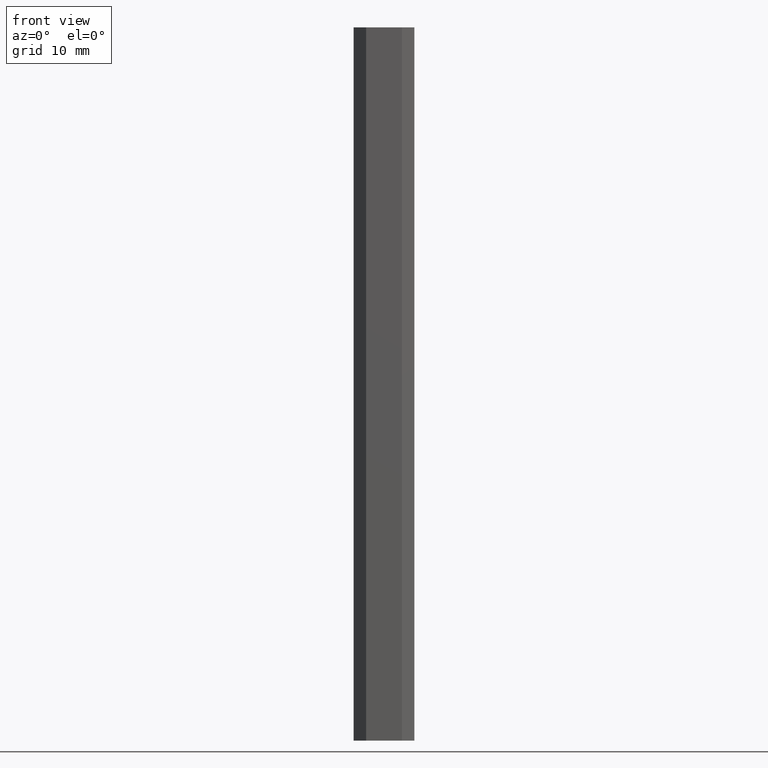
[diagram: clean part render]
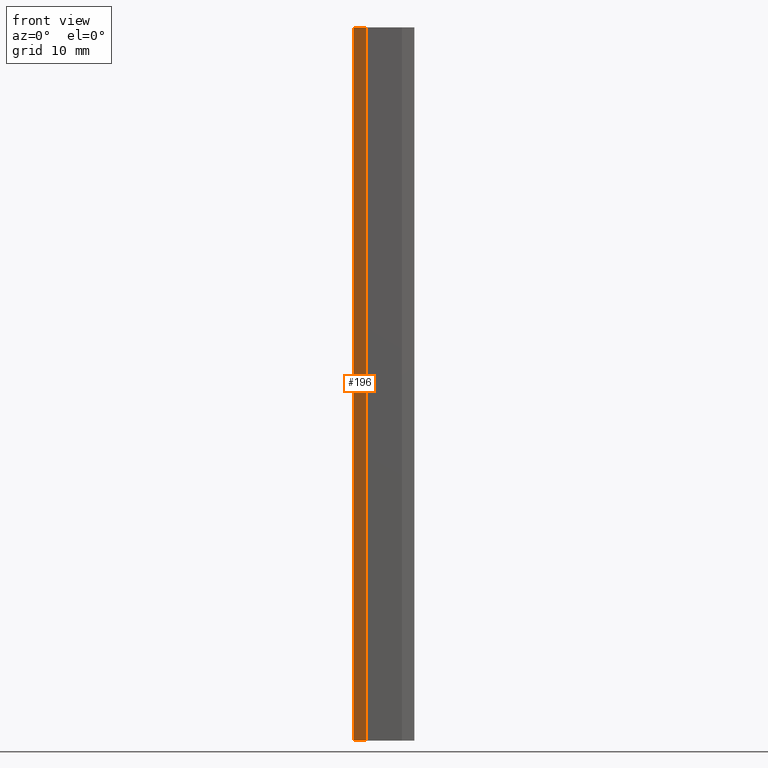
[diagram: same view with one face highlighted and labeled with its STEP entity id]
A machine part, front view. The second image highlights one B-rep face of the part: STEP entity #196.
In plain terms, the highlighted planar face has unit normal (-0.7071, -0.7071, 0).
Its self-contained STEP definition (entity closure, byte-faithful):
#140=CARTESIAN_POINT('',(-4.249999999983174,1.749999999993179,0.0));
#141=VERTEX_POINT('',#140);
#148=CARTESIAN_POINT('',(-4.249999999983174,1.749999999993179,100.0));
#149=VERTEX_POINT('',#148);
#150=CARTESIAN_POINT('',(-4.249999999983174,1.749999999993179,0.0));
#151=DIRECTION('',(0.0,0.0,1.0));
#152=VECTOR('',#151,100.0);
#153=LINE('',#150,#152);
#154=EDGE_CURVE('',#141,#149,#153,.T.);
#166=CARTESIAN_POINT('',(-4.249999999983174,1.749999999993179,0.0));
#167=DIRECTION('',(-0.707106781186548,-0.707106781186548,0.0));
#168=DIRECTION('',(0.707106781186548,-0.707106781186548,0.0));
#169=AXIS2_PLACEMENT_3D('',#166,#167,#168);
#170=PLANE('',#169);
#171=CARTESIAN_POINT('',(-2.499999999989996,0.0,0.0));
#172=VERTEX_POINT('',#171);
#173=CARTESIAN_POINT('',(-4.249999999983007,1.749999999993011,0.0));
#174=DIRECTION('',(0.707106781186548,-0.707106781186547,0.0));
#175=VECTOR('',#174,2.474873734143033);
#176=LINE('',#173,#175);
#177=EDGE_CURVE('',#141,#172,#176,.T.);
#178=ORIENTED_EDGE('',*,*,#177,.T.);
#179=CARTESIAN_POINT('',(-2.499999999989996,0.0,100.0));
#180=VERTEX_POINT('',#179);
#181=CARTESIAN_POINT('',(-2.499999999989996,0.0,0.0));
#182=DIRECTION('',(0.0,0.0,1.0));
#183=VECTOR('',#182,100.0);
#184=LINE('',#181,#183);
#185=EDGE_CURVE('',#172,#180,#184,.T.);
#186=ORIENTED_EDGE('',*,*,#185,.T.);
#187=CARTESIAN_POINT('',(-4.249999999983007,1.749999999993011,100.0));
#188=DIRECTION('',(0.707106781186548,-0.707106781186547,0.0));
#189=VECTOR('',#188,2.474873734143033);
#190=LINE('',#187,#189);
#191=EDGE_CURVE('',#149,#180,#190,.T.);
#192=ORIENTED_EDGE('',*,*,#191,.F.);
#193=ORIENTED_EDGE('',*,*,#154,.F.);
#194=EDGE_LOOP('',(#178,#186,#192,#193));
#195=FACE_OUTER_BOUND('',#194,.T.);
#196=ADVANCED_FACE('',(#195),#170,.T.);